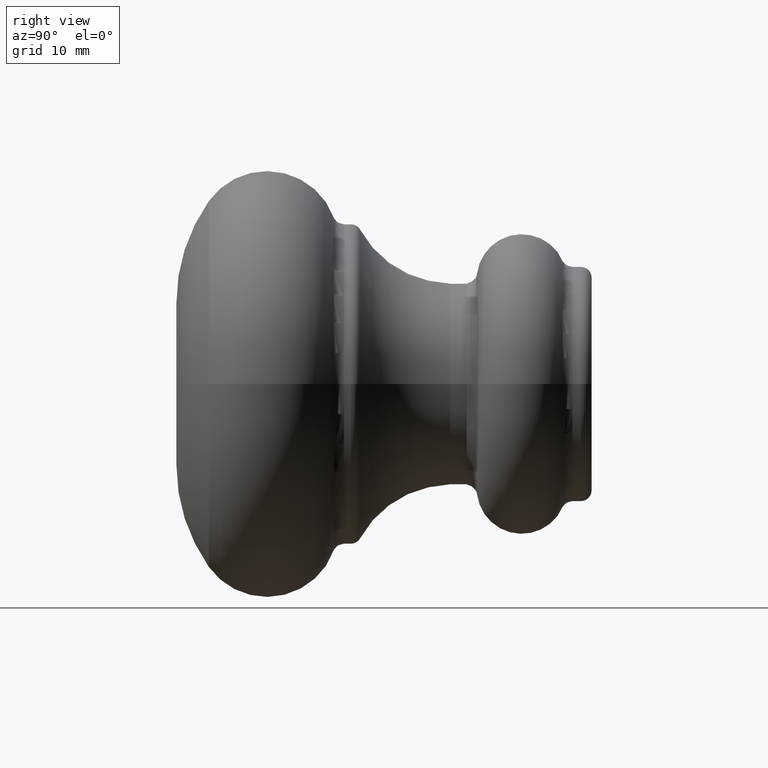
[diagram: clean part render]
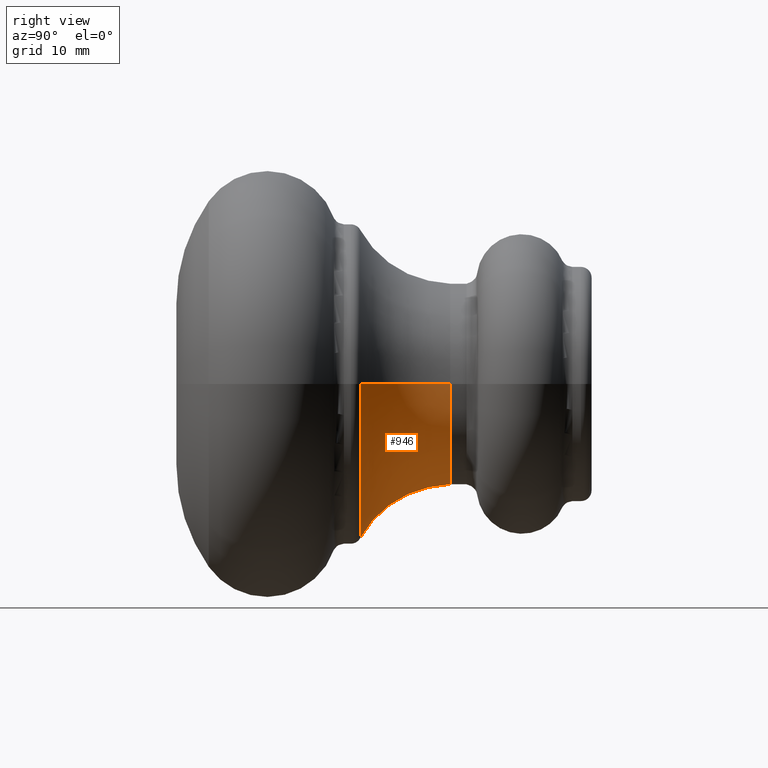
[diagram: same view with one face highlighted and labeled with its STEP entity id]
A machine part, right view. The second image highlights one B-rep face of the part: STEP entity #946.
In plain terms, the highlighted toroidal blend (fillet) surface has major radius 19.1431 mm and minor (blend) radius 9.6564 mm.
Its self-contained STEP definition (entity closure, byte-faithful):
#946 = ADVANCED_FACE ( 'NONE', ( #8157 ), #6695, .F. ) ;
#968 = CIRCLE ( 'NONE', #4521, 9.656444417877510844 ) ;
#1231 = DIRECTION ( 'NONE',  ( -1.000000000000000000, 0.000000000000000000, 0.000000000000000000 ) ) ;
#1336 = CARTESIAN_POINT ( 'NONE',  ( 8.077173920148291842E-17, 25.72250081452922998, 0.000000000000000000 ) ) ;
#1697 = DIRECTION ( 'NONE',  ( -1.224646799147353207E-16, 3.845537904261165162E-34, 1.000000000000000000 ) ) ;
#2274 = DIRECTION ( 'NONE',  ( -0.000000000000000000, 0.000000000000000000, -1.000000000000000000 ) ) ;
#2398 = CIRCLE ( 'NONE', #7089, 9.656444417877510844 ) ;
#2585 = CARTESIAN_POINT ( 'NONE',  ( 19.14305422799347767, 25.72250081452922998, 2.344348008621641766E-15 ) ) ;
#2796 = EDGE_CURVE ( 'NONE', #6168, #3281, #968, .T. ) ;
#2909 = DIRECTION ( 'NONE',  ( 3.140119997813719199E-18, 1.000000000000000000, -0.000000000000000000 ) ) ;
#3281 = VERTEX_POINT ( 'NONE', #5022 ) ;
#3346 = VERTEX_POINT ( 'NONE', #7650 ) ;
#3718 = CIRCLE ( 'NONE', #5653, 9.486609810115965047 ) ;
#3742 = CARTESIAN_POINT ( 'NONE',  ( -2.655719382564844235E-17, 17.26511898066980777, 0.000000000000000000 ) ) ;
#3848 = DIRECTION ( 'NONE',  ( -1.000000000000000000, 0.000000000000000000, 0.000000000000000000 ) ) ;
#4517 = EDGE_CURVE ( 'NONE', #9027, #3346, #2398, .T. ) ;
#4521 = AXIS2_PLACEMENT_3D ( 'NONE', #8948, #2274, #8197 ) ;
#4605 = DIRECTION ( 'NONE',  ( 3.140119997813719199E-18, 1.000000000000000000, -0.000000000000000000 ) ) ;
#5022 = CARTESIAN_POINT ( 'NONE',  ( -14.48262384959896920, 17.26511898066980777, 0.000000000000000000 ) ) ;
#5653 = AXIS2_PLACEMENT_3D ( 'NONE', #1336, #4605, #1231 ) ;
#5717 = DIRECTION ( 'NONE',  ( 3.140119997813719199E-18, 1.000000000000000000, -0.000000000000000000 ) ) ;
#5930 = AXIS2_PLACEMENT_3D ( 'NONE', #7580, #5717, #9127 ) ;
#6168 = VERTEX_POINT ( 'NONE', #6595 ) ;
#6373 = CIRCLE ( 'NONE', #9302, 14.48262384959897098 ) ;
#6415 = ORIENTED_EDGE ( 'NONE', *, *, #10499, .T. ) ;
#6595 = CARTESIAN_POINT ( 'NONE',  ( -9.486609810115965047, 25.72250081452922998, 0.000000000000000000 ) ) ;
#6695 = TOROIDAL_SURFACE ( 'NONE', #5930, 19.14305422799347767, 9.656444417877512620 ) ;
#6897 = ORIENTED_EDGE ( 'NONE', *, *, #4517, .T. ) ;
#7089 = AXIS2_PLACEMENT_3D ( 'NONE', #2585, #1697, #9298 ) ;
#7222 = EDGE_LOOP ( 'NONE', ( #9042, #6897, #6415, #7260 ) ) ;
#7260 = ORIENTED_EDGE ( 'NONE', *, *, #2796, .F. ) ;
#7580 = CARTESIAN_POINT ( 'NONE',  ( 0.000000000000000000, 25.72250081452922998, 0.000000000000000000 ) ) ;
#7650 = CARTESIAN_POINT ( 'NONE',  ( 14.48262384959896920, 17.26511898066980777, 1.773609894066649419E-15 ) ) ;
#8157 = FACE_OUTER_BOUND ( 'NONE', #7222, .T. ) ;
#8197 = DIRECTION ( 'NONE',  ( -1.000000000000000000, 0.000000000000000000, 0.000000000000000000 ) ) ;
#8948 = CARTESIAN_POINT ( 'NONE',  ( -19.14305422799347767, 25.72250081452922998, 0.000000000000000000 ) ) ;
#9027 = VERTEX_POINT ( 'NONE', #11011 ) ;
#9042 = ORIENTED_EDGE ( 'NONE', *, *, #10569, .F. ) ;
#9127 = DIRECTION ( 'NONE',  ( -1.000000000000000000, 3.140119997813719199E-18, 0.000000000000000000 ) ) ;
#9298 = DIRECTION ( 'NONE',  ( 1.000000000000000000, 0.000000000000000000, 1.224646799147353207E-16 ) ) ;
#9302 = AXIS2_PLACEMENT_3D ( 'NONE', #3742, #2909, #3848 ) ;
#10499 = EDGE_CURVE ( 'NONE', #3346, #3281, #6373, .T. ) ;
#10569 = EDGE_CURVE ( 'NONE', #9027, #6168, #3718, .T. ) ;
#11011 = CARTESIAN_POINT ( 'NONE',  ( 9.486609810115965047, 25.72250081452922998, 1.467692263969244737E-15 ) ) ;